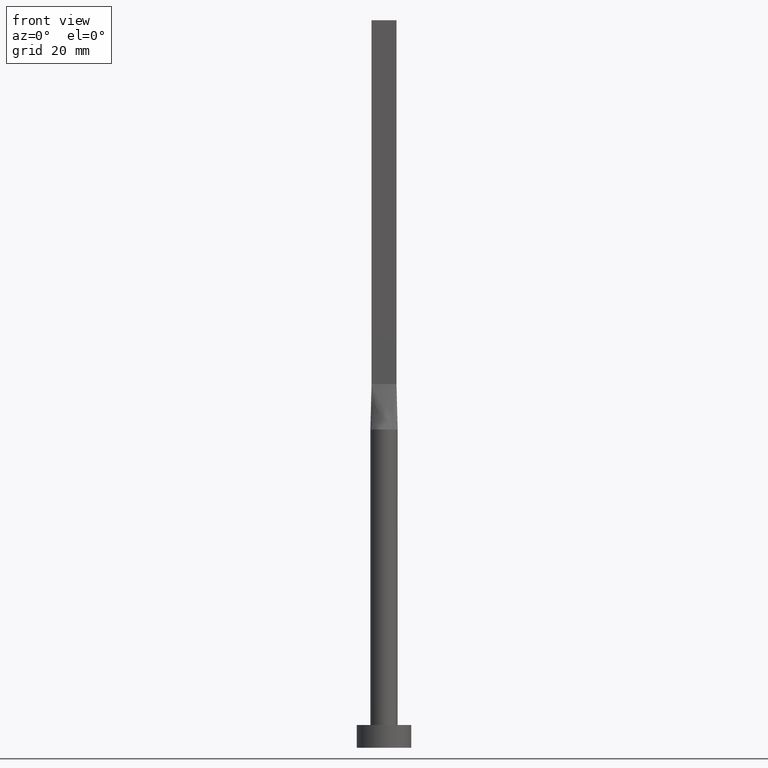
[diagram: clean part render]
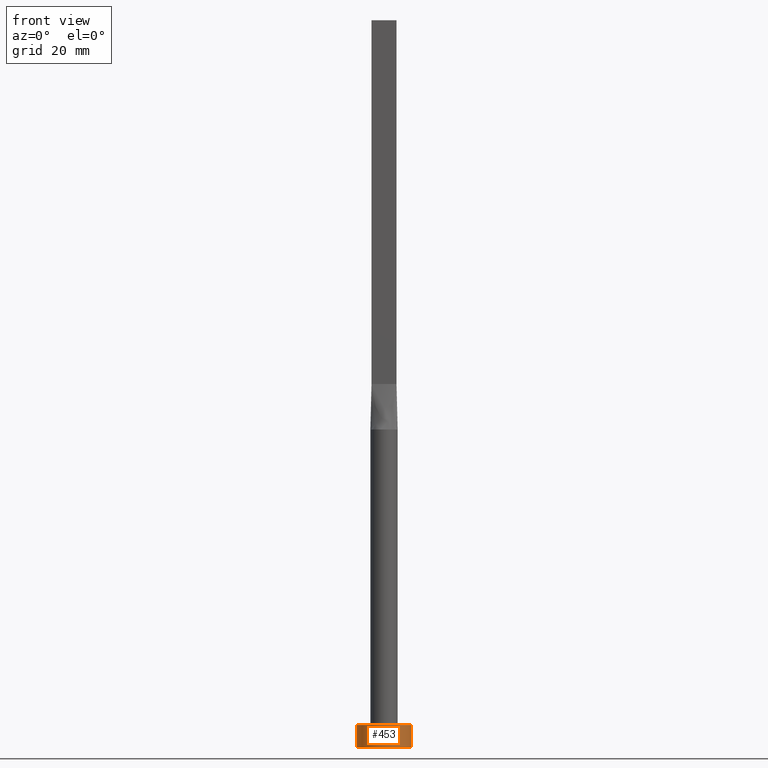
[diagram: same view with one face highlighted and labeled with its STEP entity id]
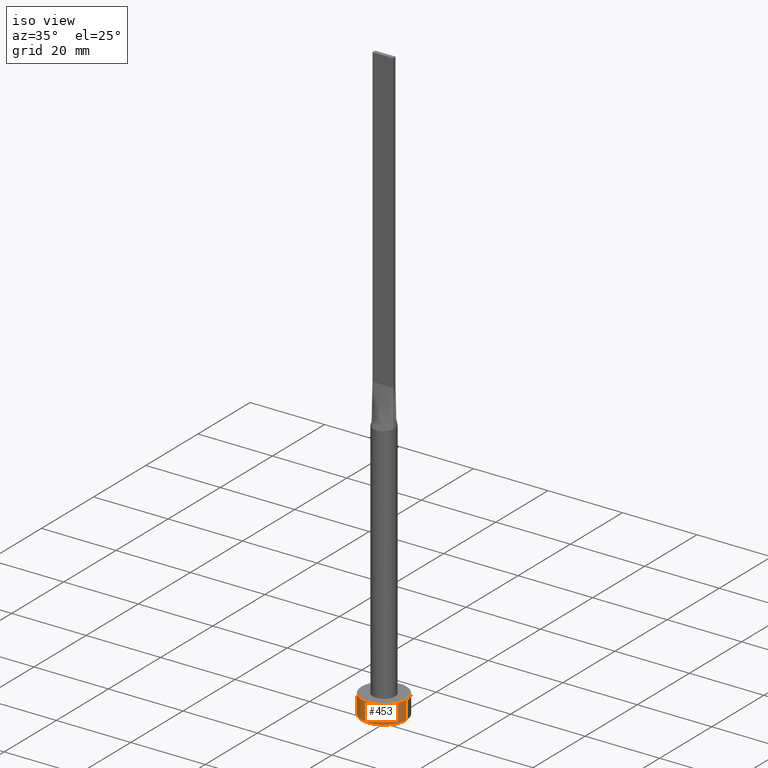
[diagram: same view with one face highlighted and labeled with its STEP entity id]
A machine part, front view. The second image highlights one B-rep face of the part: STEP entity #453.
A second angle (iso view) of the same face is appended — the face is thin or edge-on in the first view.
In plain terms, the highlighted cylindrical surface (edge-blend (fillet) strip) has radius 6 mm, axis along (-0, -0, -1).
Its self-contained STEP definition (entity closure, byte-faithful):
#3 = ORIENTED_EDGE ( 'NONE', *, *, #96, .T. ) ;
#14 = VECTOR ( 'NONE', #429, 1000.000000000000000 ) ;
#16 = EDGE_LOOP ( 'NONE', ( #157, #390, #172, #3 ) ) ;
#25 = CARTESIAN_POINT ( 'NONE',  ( -6.000000000000000888, 0.000000000000000000, 5.000000000000000000 ) ) ;
#28 = CARTESIAN_POINT ( 'NONE',  ( -6.000000000000000888, 0.000000000000000000, 5.000000000000000000 ) ) ;
#32 = VERTEX_POINT ( 'NONE', #484 ) ;
#50 = CARTESIAN_POINT ( 'NONE',  ( 0.000000000000000000, 0.000000000000000000, 5.000000000000000000 ) ) ;
#51 = VERTEX_POINT ( 'NONE', #28 ) ;
#74 = VERTEX_POINT ( 'NONE', #579 ) ;
#94 = DIRECTION ( 'NONE',  ( 0.000000000000000000, 0.000000000000000000, 1.000000000000000000 ) ) ;
#96 = EDGE_CURVE ( 'NONE', #74, #32, #551, .T. ) ;
#99 = FACE_OUTER_BOUND ( 'NONE', #16, .T. ) ;
#111 = EDGE_CURVE ( 'NONE', #51, #142, #188, .T. ) ;
#142 = VERTEX_POINT ( 'NONE', #539 ) ;
#157 = ORIENTED_EDGE ( 'NONE', *, *, #328, .F. ) ;
#167 = CYLINDRICAL_SURFACE ( 'NONE', #463, 6.000000000000000888 ) ;
#172 = ORIENTED_EDGE ( 'NONE', *, *, #241, .T. ) ;
#177 = VECTOR ( 'NONE', #480, 1000.000000000000000 ) ;
#188 = CIRCLE ( 'NONE', #229, 6.000000000000000888 ) ;
#192 = CARTESIAN_POINT ( 'NONE',  ( 6.000000000000000888, 7.347880794884120722E-16, 5.000000000000000000 ) ) ;
#204 = AXIS2_PLACEMENT_3D ( 'NONE', #307, #94, #363 ) ;
#216 = DIRECTION ( 'NONE',  ( -0.000000000000000000, -0.000000000000000000, -1.000000000000000000 ) ) ;
#229 = AXIS2_PLACEMENT_3D ( 'NONE', #50, #443, #407 ) ;
#241 = EDGE_CURVE ( 'NONE', #51, #74, #388, .T. ) ;
#250 = CARTESIAN_POINT ( 'NONE',  ( 0.000000000000000000, 0.000000000000000000, 5.000000000000000000 ) ) ;
#307 = CARTESIAN_POINT ( 'NONE',  ( 0.000000000000000000, 0.000000000000000000, 0.000000000000000000 ) ) ;
#328 = EDGE_CURVE ( 'NONE', #142, #32, #386, .T. ) ;
#363 = DIRECTION ( 'NONE',  ( 1.000000000000000000, 0.000000000000000000, 0.000000000000000000 ) ) ;
#386 = LINE ( 'NONE', #192, #14 ) ;
#388 = LINE ( 'NONE', #25, #177 ) ;
#390 = ORIENTED_EDGE ( 'NONE', *, *, #111, .F. ) ;
#397 = DIRECTION ( 'NONE',  ( -1.000000000000000000, 0.000000000000000000, 0.000000000000000000 ) ) ;
#407 = DIRECTION ( 'NONE',  ( 1.000000000000000000, 0.000000000000000000, 0.000000000000000000 ) ) ;
#429 = DIRECTION ( 'NONE',  ( -0.000000000000000000, -0.000000000000000000, -1.000000000000000000 ) ) ;
#443 = DIRECTION ( 'NONE',  ( 0.000000000000000000, 0.000000000000000000, 1.000000000000000000 ) ) ;
#453 = ADVANCED_FACE ( 'NONE', ( #99 ), #167, .T. ) ;
#463 = AXIS2_PLACEMENT_3D ( 'NONE', #250, #216, #397 ) ;
#480 = DIRECTION ( 'NONE',  ( -0.000000000000000000, -0.000000000000000000, -1.000000000000000000 ) ) ;
#484 = CARTESIAN_POINT ( 'NONE',  ( 6.000000000000000888, 7.347880794884120722E-16, 0.000000000000000000 ) ) ;
#539 = CARTESIAN_POINT ( 'NONE',  ( 6.000000000000000888, 7.347880794884120722E-16, 5.000000000000000000 ) ) ;
#551 = CIRCLE ( 'NONE', #204, 6.000000000000000888 ) ;
#579 = CARTESIAN_POINT ( 'NONE',  ( -6.000000000000000888, 0.000000000000000000, 0.000000000000000000 ) ) ;